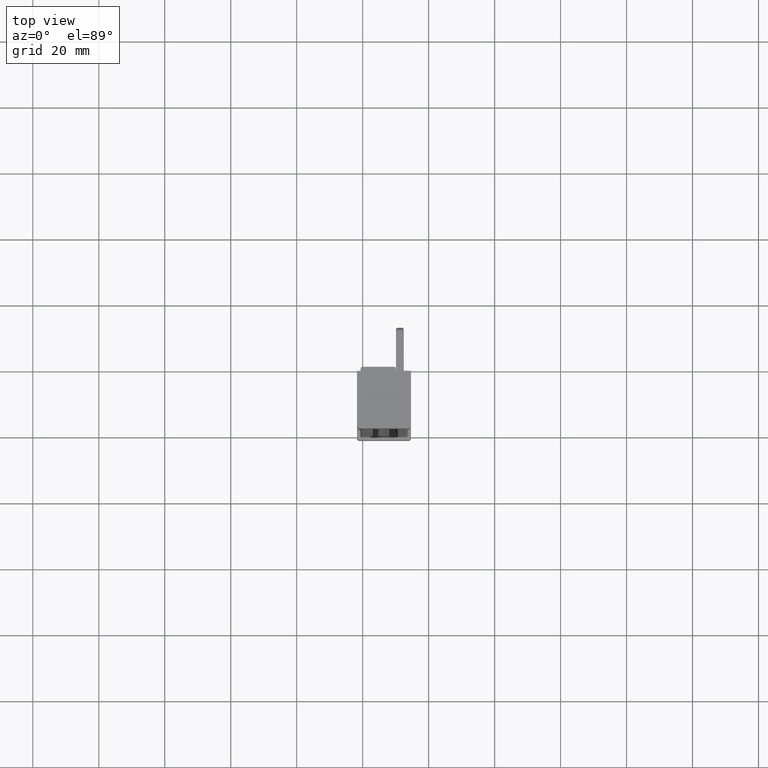
[diagram: clean part render]
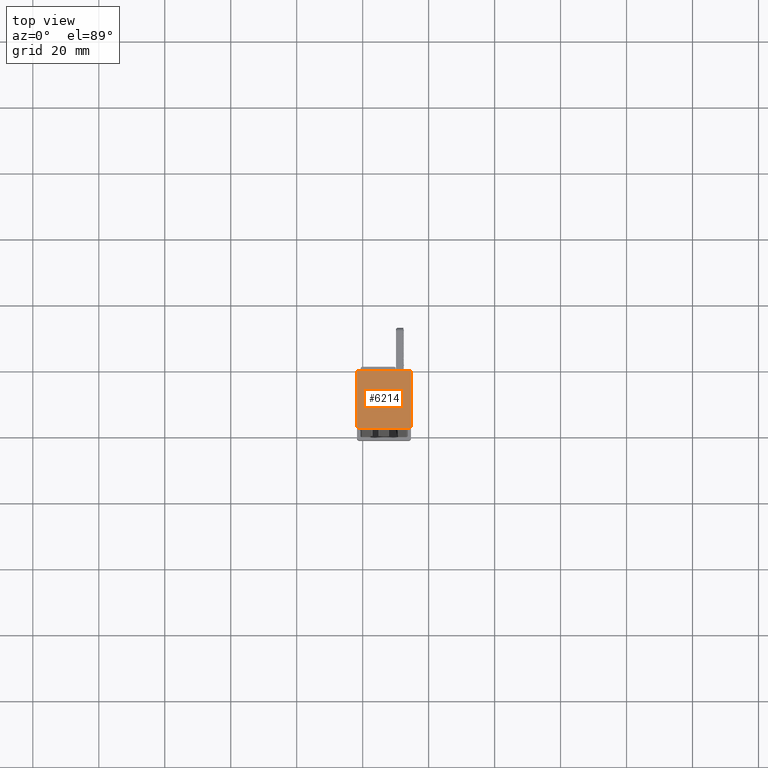
[diagram: same view with one face highlighted and labeled with its STEP entity id]
A machine part, top view. The second image highlights one B-rep face of the part: STEP entity #6214.
In plain terms, the highlighted planar face has unit normal (-0, 0, -1).
Its self-contained STEP definition (entity closure, byte-faithful):
#1386 = EDGE_CURVE ( 'NONE', #21448, #21392, #19199, .T. ) ;
#1392 = EDGE_CURVE ( 'NONE', #21380, #21379, #19237, .T. ) ;
#1412 = EDGE_CURVE ( 'NONE', #21361, #21396, #19334, .T. ) ;
#1440 = EDGE_CURVE ( 'NONE', #21361, #21379, #9146, .T. ) ;
#1451 = EDGE_CURVE ( 'NONE', #21426, #21465, #19303, .T. ) ;
#1469 = EDGE_CURVE ( 'NONE', #21392, #21380, #9244, .T. ) ;
#1477 = EDGE_CURVE ( 'NONE', #21465, #21448, #9302, .T. ) ;
#1495 = EDGE_CURVE ( 'NONE', #21426, #21396, #9369, .T. ) ;
#2558 = CARTESIAN_POINT ( 'NONE',  ( -0.9839999998933263200, -1.000000000000389500, 219.0000000000590600 ) ) ;
#2577 = CARTESIAN_POINT ( 'NONE',  ( -1.733999999890744900, -0.2500000000002777800, 219.0000000000594300 ) ) ;
#2586 = CARTESIAN_POINT ( 'NONE',  ( 14.66600000010917900, -0.2500000000003888000, 219.0000000000513000 ) ) ;
#2587 = CARTESIAN_POINT ( 'NONE',  ( 14.66600000010917900, 16.29999999999973100, 219.0000000000513000 ) ) ;
#2604 = CARTESIAN_POINT ( 'NONE',  ( 13.91600000010917700, -1.000000000000389500, 219.0000000000553400 ) ) ;
#2637 = CARTESIAN_POINT ( 'NONE',  ( -1.733999999890744900, 16.29999999999973100, 219.0000000000594300 ) ) ;
#2639 = CARTESIAN_POINT ( 'NONE',  ( 14.46600000010933900, 16.49999999999970900, 219.0000000000553900 ) ) ;
#2678 = CARTESIAN_POINT ( 'NONE',  ( -1.533999999893321100, 16.49999999999970900, 219.0000000000593400 ) ) ;
#4911 = AXIS2_PLACEMENT_3D ( 'NONE', #22900, #22929, #22930 ) ;
#6214 = ADVANCED_FACE ( 'NONE', ( #22898 ), #22947, .F. ) ;
#9146 = LINE ( 'NONE', #9147, #19307 ) ;
#9147 = CARTESIAN_POINT ( 'NONE',  ( 6.466000000104061800, -1.000000000000389500, 219.0000000000590600 ) ) ;
#9193 = CARTESIAN_POINT ( 'NONE',  ( -1.533999999890739200, 16.29999999999973100, 219.0000000000593200 ) ) ;
#9195 = DIRECTION ( 'NONE',  ( -4.965472477636011600E-013, -0.0000000000000000000, -1.000000000000000000 ) ) ;
#9205 = DIRECTION ( 'NONE',  ( 1.000000000000000000, 0.0000000000000000000, -5.551115123126008900E-013 ) ) ;
#9213 = DIRECTION ( 'NONE',  ( 1.000000000000000000, 0.0000000000000000000, -0.0000000000000000000 ) ) ;
#9238 = CARTESIAN_POINT ( 'NONE',  ( 14.66600000010917900, -11.04623440810184900, 219.0000000000513000 ) ) ;
#9244 = LINE ( 'NONE', #9238, #19382 ) ;
#9253 = DIRECTION ( 'NONE',  ( -0.0000000000000000000, -1.000000000000000000, -0.0000000000000000000 ) ) ;
#9298 = DIRECTION ( 'NONE',  ( 1.000000000000000000, 0.0000000000000000000, -0.0000000000000000000 ) ) ;
#9302 = LINE ( 'NONE', #9321, #19385 ) ;
#9321 = CARTESIAN_POINT ( 'NONE',  ( 6.466000000104061800, 16.49999999999970900, 219.0000000000593700 ) ) ;
#9353 = CARTESIAN_POINT ( 'NONE',  ( -1.733999999890744900, -11.04623440810184900, 219.0000000000594300 ) ) ;
#9358 = DIRECTION ( 'NONE',  ( -0.0000000000000000000, -1.000000000000000000, -0.0000000000000000000 ) ) ;
#9369 = LINE ( 'NONE', #9353, #19371 ) ;
#16925 = EDGE_LOOP ( 'NONE', ( #17233, #17217, #17253, #17234, #17249, #17255, #17266, #17221 ) ) ;
#17217 = ORIENTED_EDGE ( 'NONE', *, *, #1495, .T. ) ;
#17221 = ORIENTED_EDGE ( 'NONE', *, *, #1477, .F. ) ;
#17233 = ORIENTED_EDGE ( 'NONE', *, *, #1451, .F. ) ;
#17234 = ORIENTED_EDGE ( 'NONE', *, *, #1440, .T. ) ;
#17249 = ORIENTED_EDGE ( 'NONE', *, *, #1392, .F. ) ;
#17253 = ORIENTED_EDGE ( 'NONE', *, *, #1412, .F. ) ;
#17255 = ORIENTED_EDGE ( 'NONE', *, *, #1469, .F. ) ;
#17266 = ORIENTED_EDGE ( 'NONE', *, *, #1386, .F. ) ;
#19191 = AXIS2_PLACEMENT_3D ( 'NONE', #22018, #22028, #22029 ) ;
#19199 = CIRCLE ( 'NONE', #19233, 0.1999999999999085800 ) ;
#19233 = AXIS2_PLACEMENT_3D ( 'NONE', #22004, #22024, #22013 ) ;
#19237 = CIRCLE ( 'NONE', #19191, 0.7500000000000006700 ) ;
#19264 = AXIS2_PLACEMENT_3D ( 'NONE', #22080, #22086, #22081 ) ;
#19303 = CIRCLE ( 'NONE', #19330, 0.1999999999999918500 ) ;
#19307 = VECTOR ( 'NONE', #9213, 1000.000000000000000 ) ;
#19330 = AXIS2_PLACEMENT_3D ( 'NONE', #9193, #9195, #9205 ) ;
#19334 = CIRCLE ( 'NONE', #19264, 0.7500000000000564000 ) ;
#19371 = VECTOR ( 'NONE', #9358, 1000.000000000000000 ) ;
#19382 = VECTOR ( 'NONE', #9253, 1000.000000000000000 ) ;
#19385 = VECTOR ( 'NONE', #9298, 1000.000000000000000 ) ;
#21361 = VERTEX_POINT ( 'NONE', #2558 ) ;
#21379 = VERTEX_POINT ( 'NONE', #2604 ) ;
#21380 = VERTEX_POINT ( 'NONE', #2586 ) ;
#21392 = VERTEX_POINT ( 'NONE', #2587 ) ;
#21396 = VERTEX_POINT ( 'NONE', #2577 ) ;
#21426 = VERTEX_POINT ( 'NONE', #2637 ) ;
#21448 = VERTEX_POINT ( 'NONE', #2639 ) ;
#21465 = VERTEX_POINT ( 'NONE', #2678 ) ;
#22004 = CARTESIAN_POINT ( 'NONE',  ( 14.46600000010933800, 16.29999999999973100, 219.0000000000514100 ) ) ;
#22013 = DIRECTION ( 'NONE',  ( 1.000000000000000000, 0.0000000000000000000, -5.551115123128320200E-013 ) ) ;
#22018 = CARTESIAN_POINT ( 'NONE',  ( 13.91600000010917500, -0.2500000000003888000, 219.0000000000516400 ) ) ;
#22024 = DIRECTION ( 'NONE',  ( -4.965472477636011600E-013, -0.0000000000000000000, -1.000000000000000000 ) ) ;
#22028 = DIRECTION ( 'NONE',  ( -4.965472477636011600E-013, -0.0000000000000000000, -1.000000000000000000 ) ) ;
#22029 = DIRECTION ( 'NONE',  ( 1.000000000000000000, 0.0000000000000000000, -4.810966440042340600E-013 ) ) ;
#22080 = CARTESIAN_POINT ( 'NONE',  ( -0.9839999998907443800, -0.2500000000002777800, 219.0000000000590600 ) ) ;
#22081 = DIRECTION ( 'NONE',  ( 1.000000000000000000, 8.673617379883383700E-016, -4.810966440041983200E-013 ) ) ;
#22086 = DIRECTION ( 'NONE',  ( -4.965472477636011600E-013, -0.0000000000000000000, -1.000000000000000000 ) ) ;
#22898 = FACE_OUTER_BOUND ( 'NONE', #16925, .T. ) ;
#22900 = CARTESIAN_POINT ( 'NONE',  ( 6.466000000109232800, -11.04623440810184900, 219.0000000000553700 ) ) ;
#22929 = DIRECTION ( 'NONE',  ( -4.965472477636011600E-013, 0.0000000000000000000, -1.000000000000000000 ) ) ;
#22930 = DIRECTION ( 'NONE',  ( -1.000000000000000000, 0.0000000000000000000, 4.965472477636011600E-013 ) ) ;
#22947 = PLANE ( 'NONE',  #4911 ) ;